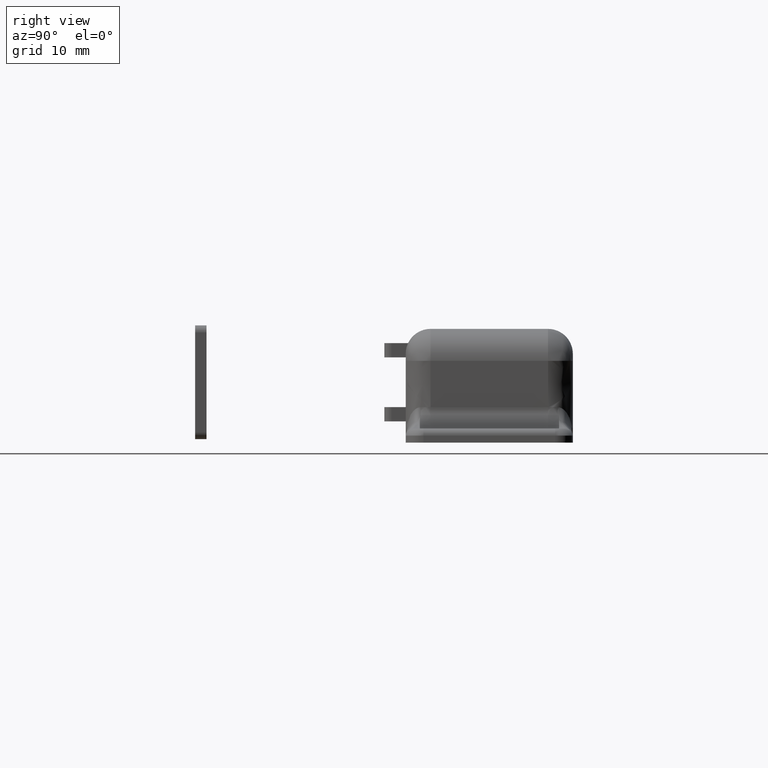
[diagram: clean part render]
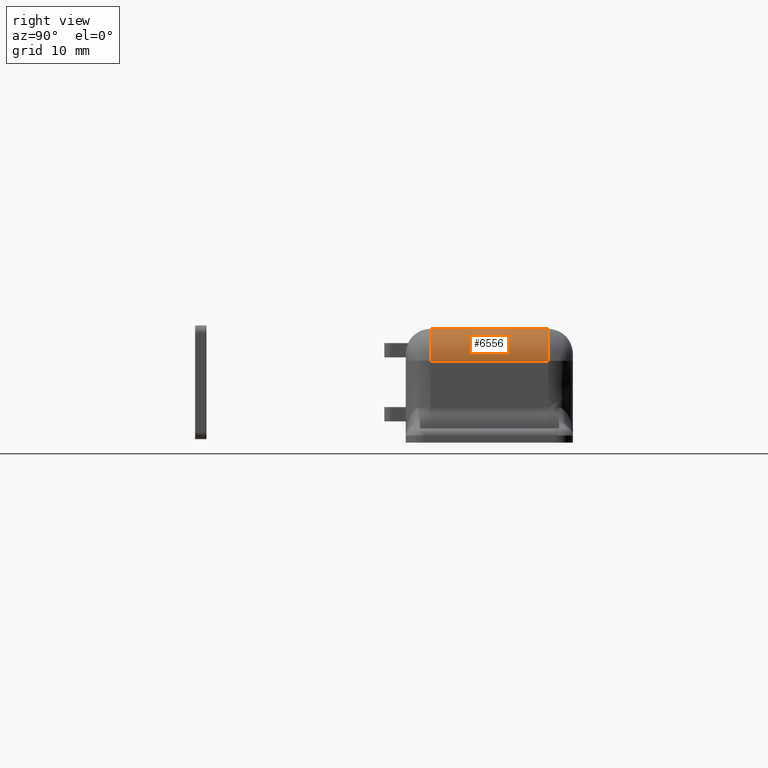
[diagram: same view with one face highlighted and labeled with its STEP entity id]
A machine part, right view. The second image highlights one B-rep face of the part: STEP entity #6556.
In plain terms, the highlighted face is a freeform B-spline surface patch.
Its self-contained STEP definition (entity closure, byte-faithful):
#6451=CARTESIAN_POINT('',(28.0,-8.249999999999870,16.0));
#6452=VERTEX_POINT('',#6451);
#6481=CARTESIAN_POINT('',(32.500000000000000,-8.249999999999870,11.500000000000000));
#6482=VERTEX_POINT('',#6481);
#6496=CARTESIAN_POINT('',(32.500000000000000,-8.249999999999870,11.500000000000000));
#6497=CARTESIAN_POINT('',(32.499999999999993,-8.249999999999870,16.0));
#6498=CARTESIAN_POINT('',(28.0,-8.249999999999870,16.0));
#6506=(BOUNDED_CURVE()B_SPLINE_CURVE(2,(#6496,#6497,#6498),.UNSPECIFIED.,.F.,.U.)CURVE()GEOMETRIC_REPRESENTATION_ITEM()QUASI_UNIFORM_CURVE()RATIONAL_B_SPLINE_CURVE((1.0,0.707106781186547,1.0))REPRESENTATION_ITEM(''));
#6507=EDGE_CURVE('',#6482,#6452,#6506,.T.);
#6512=CARTESIAN_POINT('',(27.882203732614560,8.662500000000110,15.998457962390010));
#6513=CARTESIAN_POINT('',(27.882203732614560,-8.672812499999873,15.998457962390010));
#6514=CARTESIAN_POINT('',(32.791409148673523,8.662500000000110,16.127010030381950));
#6515=CARTESIAN_POINT('',(32.791409148673523,-8.672812499999873,16.127010030381950));
#6516=CARTESIAN_POINT('',(32.491606592898393,8.662500000000110,11.225281572093150));
#6517=CARTESIAN_POINT('',(32.491606592898393,-8.672812499999873,11.225281572093150));
#6525=(BOUNDED_SURFACE()B_SPLINE_SURFACE(1,2,((#6512,#6514,#6516),(#6513,#6515,#6517)),.UNSPECIFIED.,.F.,.F.,.U.)B_SPLINE_SURFACE_WITH_KNOTS((2,2),(3,3),(0.0,17.335312499999979),(0.0,7.920189556052989),.UNSPECIFIED.)GEOMETRIC_REPRESENTATION_ITEM()RATIONAL_B_SPLINE_SURFACE(((1.0,0.675590207615660,1.0),(1.0,0.675590207615660,1.0)))REPRESENTATION_ITEM('')SURFACE());
#6526=CARTESIAN_POINT('',(32.500000000000000,8.250000000000110,11.500000000000000));
#6527=VERTEX_POINT('',#6526);
#6528=CARTESIAN_POINT('',(28.0,8.250000000000110,16.0));
#6529=VERTEX_POINT('',#6528);
#6530=CARTESIAN_POINT('',(32.500000000000000,8.250000000000091,11.500000000000000));
#6531=CARTESIAN_POINT('',(32.499999999999993,8.250000000000091,16.0));
#6532=CARTESIAN_POINT('',(28.0,8.250000000000091,16.0));
#6540=(BOUNDED_CURVE()B_SPLINE_CURVE(2,(#6530,#6531,#6532),.UNSPECIFIED.,.F.,.U.)CURVE()GEOMETRIC_REPRESENTATION_ITEM()QUASI_UNIFORM_CURVE()RATIONAL_B_SPLINE_CURVE((1.0,0.707106781186547,1.0))REPRESENTATION_ITEM(''));
#6541=EDGE_CURVE('',#6527,#6529,#6540,.T.);
#6542=ORIENTED_EDGE('',*,*,#6541,.T.);
#6543=CARTESIAN_POINT('',(28.0,-8.249999999999870,16.0));
#6544=CARTESIAN_POINT('',(28.0,8.250000000000110,16.0));
#6545=QUASI_UNIFORM_CURVE('',1,(#6543,#6544),.UNSPECIFIED.,.F.,.U.);
#6546=EDGE_CURVE('',#6452,#6529,#6545,.T.);
#6547=ORIENTED_EDGE('',*,*,#6546,.F.);
#6548=ORIENTED_EDGE('',*,*,#6507,.F.);
#6549=CARTESIAN_POINT('',(32.500000000000000,8.250000000000110,11.500000000000000));
#6550=CARTESIAN_POINT('',(32.500000000000000,-8.249999999999870,11.500000000000000));
#6551=QUASI_UNIFORM_CURVE('',1,(#6549,#6550),.UNSPECIFIED.,.F.,.U.);
#6552=EDGE_CURVE('',#6527,#6482,#6551,.T.);
#6553=ORIENTED_EDGE('',*,*,#6552,.F.);
#6554=EDGE_LOOP('',(#6542,#6547,#6548,#6553));
#6555=FACE_OUTER_BOUND('',#6554,.T.);
#6556=ADVANCED_FACE('',(#6555),#6525,.T.);